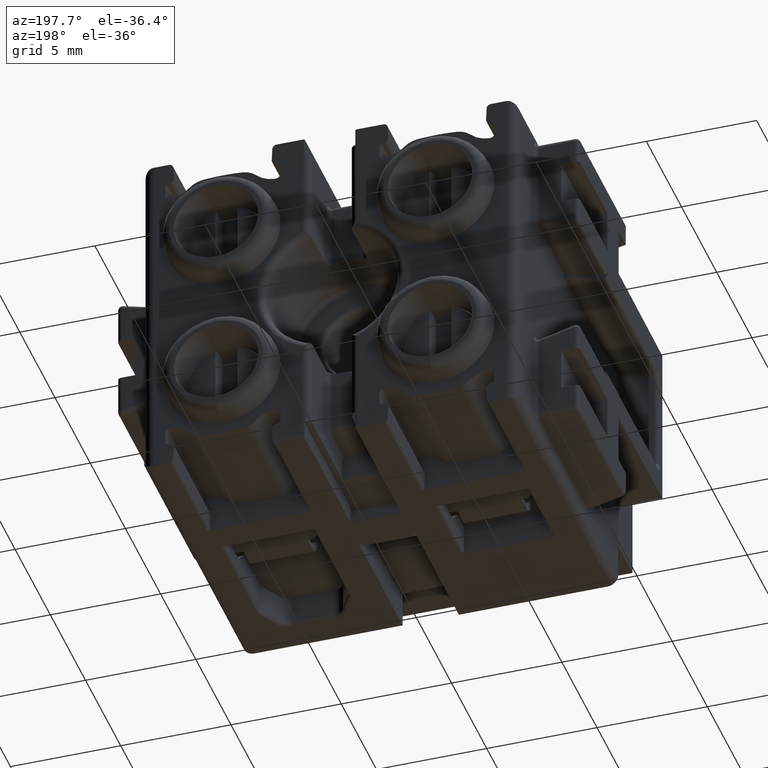
[diagram: clean part render]
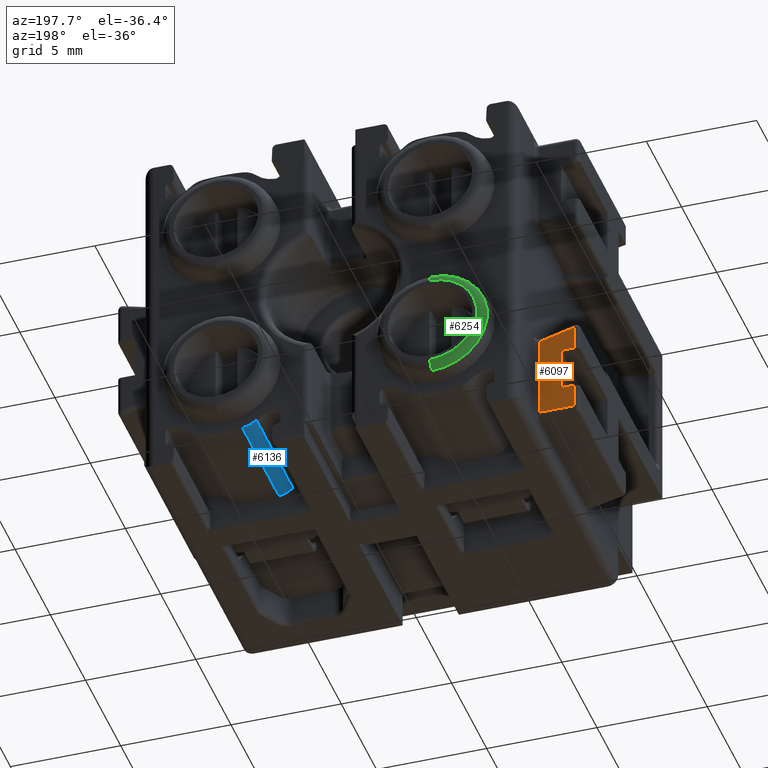
[diagram: same view with three faces highlighted in distinct colors, each labeled with its STEP entity id]
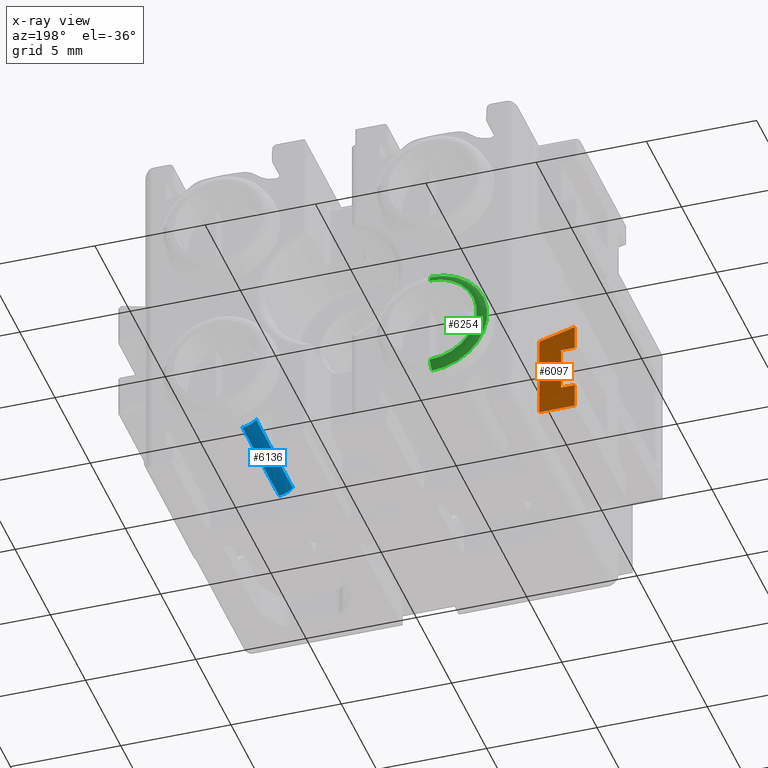
[diagram: x-ray of the same camera — body ghosted, the three highlighted faces saturated]
A machine part, auxiliary view with three faces highlighted in distinct colors.
The next image is the same camera in x-ray (body ghosted, the three faces saturated) — at least one of them is partly hidden behind the body in this view.
Their STEP definitions:

[orange] entity #6097 — the highlighted planar face has unit normal (0, 1, 0).
#1010 = AXIS2_PLACEMENT_3D ( 'NONE', #7095, #7106, #7109 ) ;
#4837 = VECTOR ( 'NONE', #14046, 1000.000000000000000 ) ;
#4877 = VECTOR ( 'NONE', #14012, 1000.000000000000000 ) ;
#4900 = VECTOR ( 'NONE', #14037, 1000.000000000000000 ) ;
#4916 = VECTOR ( 'NONE', #14061, 1000.000000000000000 ) ;
#4938 = VECTOR ( 'NONE', #14118, 1000.000000000000000 ) ;
#4941 = VECTOR ( 'NONE', #14176, 1000.000000000000200 ) ;
#4944 = VECTOR ( 'NONE', #14173, 1000.000000000000000 ) ;
#4950 = VECTOR ( 'NONE', #14159, 1000.000000000000000 ) ;
#6097 = ADVANCED_FACE ( 'NONE', ( #7101 ), #7057, .T. ) ;
#7057 = PLANE ( 'NONE',  #1010 ) ;
#7095 = CARTESIAN_POINT ( 'NONE',  ( 11.15655536988764000, 40.84963753280960200, -16.17283801961439900 ) ) ;
#7101 = FACE_OUTER_BOUND ( 'NONE', #12423, .T. ) ;
#7106 = DIRECTION ( 'NONE',  ( 0.0000000000000000000, 1.000000000000000000, 2.793185071074504800E-014 ) ) ;
#7109 = DIRECTION ( 'NONE',  ( 0.0000000000000000000, -2.793185071074504800E-014, 1.000000000000000000 ) ) ;
#12423 = EDGE_LOOP ( 'NONE', ( #20323, #20326, #20224, #20251, #20241, #20234, #20212, #20213 ) ) ;
#14003 = LINE ( 'NONE', #14007, #4877 ) ;
#14007 = CARTESIAN_POINT ( 'NONE',  ( 9.356555369887638900, 40.84963753280960200, -16.17283801961439900 ) ) ;
#14012 = DIRECTION ( 'NONE',  ( 0.0000000000000000000, -2.793185071074504800E-014, 1.000000000000000000 ) ) ;
#14017 = CARTESIAN_POINT ( 'NONE',  ( 9.976555369887639900, 40.84963753280960200, -16.17283801961429600 ) ) ;
#14031 = LINE ( 'NONE', #14044, #4900 ) ;
#14037 = DIRECTION ( 'NONE',  ( 0.0000000000000000000, -2.793185071074504800E-014, 1.000000000000000000 ) ) ;
#14044 = CARTESIAN_POINT ( 'NONE',  ( 9.356555369887638900, 40.84963753280960200, -16.17283801961439900 ) ) ;
#14046 = DIRECTION ( 'NONE',  ( -1.000000000000000000, 0.0000000000000000000, 0.0000000000000000000 ) ) ;
#14054 = LINE ( 'NONE', #14017, #4837 ) ;
#14061 = DIRECTION ( 'NONE',  ( 0.0000000000000000000, 2.793185071074504800E-014, -1.000000000000000000 ) ) ;
#14078 = CARTESIAN_POINT ( 'NONE',  ( 10.95655536988763900, 40.84963753280960200, -16.17283801961439900 ) ) ;
#14100 = LINE ( 'NONE', #14078, #4916 ) ;
#14113 = LINE ( 'NONE', #14147, #4938 ) ;
#14118 = DIRECTION ( 'NONE',  ( 0.0000000000000000000, 2.775557561562895100E-014, -1.000000000000000000 ) ) ;
#14147 = CARTESIAN_POINT ( 'NONE',  ( 9.976555369887639900, 40.84963753280960200, -16.17283801961429600 ) ) ;
#14159 = DIRECTION ( 'NONE',  ( 1.000000000000000000, 0.0000000000000000000, -9.020198266092169300E-016 ) ) ;
#14164 = LINE ( 'NONE', #14167, #4950 ) ;
#14167 = CARTESIAN_POINT ( 'NONE',  ( 9.976555369887639900, 40.84963753280954500, -14.17283801961432000 ) ) ;
#14173 = DIRECTION ( 'NONE',  ( -1.000000000000000000, 0.0000000000000000000, 0.0000000000000000000 ) ) ;
#14176 = DIRECTION ( 'NONE',  ( 0.9659258262890680900, 7.229294928901230600E-015, -0.2588190451025215200 ) ) ;
#14184 = CARTESIAN_POINT ( 'NONE',  ( 10.94743918022932000, 40.84963753280954500, -13.48652293543598000 ) ) ;
#14185 = LINE ( 'NONE', #14184, #4941 ) ;
#14192 = LINE ( 'NONE', #14194, #4944 ) ;
#14194 = CARTESIAN_POINT ( 'NONE',  ( 11.15655536988764000, 40.84963753280965200, -17.27283801961419800 ) ) ;
#14396 = VERTEX_POINT ( 'NONE', #17481 ) ;
#14425 = VERTEX_POINT ( 'NONE', #17478 ) ;
#14454 = VERTEX_POINT ( 'NONE', #17590 ) ;
#14464 = VERTEX_POINT ( 'NONE', #17548 ) ;
#14465 = VERTEX_POINT ( 'NONE', #17545 ) ;
#14470 = VERTEX_POINT ( 'NONE', #17574 ) ;
#14487 = VERTEX_POINT ( 'NONE', #17571 ) ;
#14503 = VERTEX_POINT ( 'NONE', #17617 ) ;
#17478 = CARTESIAN_POINT ( 'NONE',  ( 10.95655536988763900, 40.84963753280954500, -13.48896561109296100 ) ) ;
#17481 = CARTESIAN_POINT ( 'NONE',  ( 9.356555369887638900, 40.84963753280960200, -16.17283801961429600 ) ) ;
#17545 = CARTESIAN_POINT ( 'NONE',  ( 9.356555369887638900, 40.84963753280965200, -17.27283801961419800 ) ) ;
#17548 = CARTESIAN_POINT ( 'NONE',  ( 9.356555369887638900, 40.84963753280954500, -14.17283801961432000 ) ) ;
#17571 = CARTESIAN_POINT ( 'NONE',  ( 9.976555369887639900, 40.84963753280960200, -16.17283801961429600 ) ) ;
#17574 = CARTESIAN_POINT ( 'NONE',  ( 10.95655536988763900, 40.84963753280965200, -17.27283801961419800 ) ) ;
#17590 = CARTESIAN_POINT ( 'NONE',  ( 9.976555369887639900, 40.84963753280954500, -14.17283801961432000 ) ) ;
#17617 = CARTESIAN_POINT ( 'NONE',  ( 9.356555369887638900, 40.84963753280949600, -13.06024690320316000 ) ) ;
#20052 = EDGE_CURVE ( 'NONE', #14465, #14396, #14003, .T. ) ;
#20061 = EDGE_CURVE ( 'NONE', #14487, #14396, #14054, .T. ) ;
#20070 = EDGE_CURVE ( 'NONE', #14464, #14503, #14031, .T. ) ;
#20082 = EDGE_CURVE ( 'NONE', #14425, #14470, #14100, .T. ) ;
#20087 = EDGE_CURVE ( 'NONE', #14454, #14487, #14113, .T. ) ;
#20102 = EDGE_CURVE ( 'NONE', #14503, #14425, #14185, .T. ) ;
#20110 = EDGE_CURVE ( 'NONE', #14470, #14465, #14192, .T. ) ;
#20114 = EDGE_CURVE ( 'NONE', #14464, #14454, #14164, .T. ) ;
#20212 = ORIENTED_EDGE ( 'NONE', *, *, #20114, .F. ) ;
#20213 = ORIENTED_EDGE ( 'NONE', *, *, #20070, .T. ) ;
#20224 = ORIENTED_EDGE ( 'NONE', *, *, #20110, .T. ) ;
#20234 = ORIENTED_EDGE ( 'NONE', *, *, #20087, .F. ) ;
#20241 = ORIENTED_EDGE ( 'NONE', *, *, #20061, .F. ) ;
#20251 = ORIENTED_EDGE ( 'NONE', *, *, #20052, .T. ) ;
#20323 = ORIENTED_EDGE ( 'NONE', *, *, #20102, .T. ) ;
#20326 = ORIENTED_EDGE ( 'NONE', *, *, #20082, .T. ) ;

[blue] entity #6136 — the highlighted cylindrical surface (edge-blend (fillet) strip) has radius 1 mm, axis along (0, 1, 0).
#39 = AXIS2_PLACEMENT_3D ( 'NONE', #7311, #7285, #7288 ) ;
#261 = CIRCLE ( 'NONE', #262, 1.000000000000268000 ) ;
#262 = AXIS2_PLACEMENT_3D ( 'NONE', #8573, #8593, #8595 ) ;
#285 = VECTOR ( 'NONE', #8547, 1000.000000000000000 ) ;
#344 = VECTOR ( 'NONE', #8684, 1000.000000000000000 ) ;
#632 = AXIS2_PLACEMENT_3D ( 'NONE', #3379, #3404, #3381 ) ;
#653 = CIRCLE ( 'NONE', #632, 1.000000000000268000 ) ;
#1252 = EDGE_CURVE ( 'NONE', #14576, #14625, #653, .T. ) ;
#3379 = CARTESIAN_POINT ( 'NONE',  ( 23.71028009466210300, 43.34889991280960000, -16.02981144497174900 ) ) ;
#3381 = DIRECTION ( 'NONE',  ( 0.0000000000000000000, -2.775557561562147600E-014, 1.000000000000000000 ) ) ;
#3404 = DIRECTION ( 'NONE',  ( 0.0000000000000000000, -1.000000000000000000, -2.793185071074504800E-014 ) ) ;
#6136 = ADVANCED_FACE ( 'NONE', ( #7307 ), #7308, .T. ) ;
#6381 = EDGE_CURVE ( 'NONE', #14647, #14625, #8541, .T. ) ;
#6389 = EDGE_CURVE ( 'NONE', #14672, #14647, #261, .T. ) ;
#6426 = EDGE_CURVE ( 'NONE', #14672, #14576, #8691, .T. ) ;
#7285 = DIRECTION ( 'NONE',  ( 0.0000000000000000000, 1.000000000000000000, 2.793185071074504800E-014 ) ) ;
#7288 = DIRECTION ( 'NONE',  ( 0.0000000000000000000, -2.775557561562147600E-014, 1.000000000000000000 ) ) ;
#7307 = FACE_OUTER_BOUND ( 'NONE', #12495, .T. ) ;
#7308 = CYLINDRICAL_SURFACE ( 'NONE', #39, 1.000000000000268000 ) ;
#7311 = CARTESIAN_POINT ( 'NONE',  ( 23.71028009466210300, 38.14889991280959700, -16.02981144497190200 ) ) ;
#8541 = LINE ( 'NONE', #8569, #285 ) ;
#8547 = DIRECTION ( 'NONE',  ( 0.0000000000000000000, 1.000000000000000000, 2.793185071074504800E-014 ) ) ;
#8569 = CARTESIAN_POINT ( 'NONE',  ( 23.62082231334310100, 38.14889991280964700, -17.02580206006929900 ) ) ;
#8573 = CARTESIAN_POINT ( 'NONE',  ( 23.71028009466210300, 38.14889991280959700, -16.02981144497190200 ) ) ;
#8593 = DIRECTION ( 'NONE',  ( 0.0000000000000000000, -1.000000000000000000, -2.793185071074504800E-014 ) ) ;
#8595 = DIRECTION ( 'NONE',  ( 0.0000000000000000000, -2.775557561562147600E-014, 1.000000000000000000 ) ) ;
#8674 = CARTESIAN_POINT ( 'NONE',  ( 23.00203832925879900, 38.14889991280959700, -16.73578141723630000 ) ) ;
#8684 = DIRECTION ( 'NONE',  ( 0.0000000000000000000, 1.000000000000000000, 2.793185071074504800E-014 ) ) ;
#8691 = LINE ( 'NONE', #8674, #344 ) ;
#10308 = ORIENTED_EDGE ( 'NONE', *, *, #6389, .F. ) ;
#10309 = ORIENTED_EDGE ( 'NONE', *, *, #6426, .T. ) ;
#10316 = ORIENTED_EDGE ( 'NONE', *, *, #1252, .T. ) ;
#10327 = ORIENTED_EDGE ( 'NONE', *, *, #6381, .F. ) ;
#12495 = EDGE_LOOP ( 'NONE', ( #10316, #10327, #10308, #10309 ) ) ;
#14576 = VERTEX_POINT ( 'NONE', #17725 ) ;
#14625 = VERTEX_POINT ( 'NONE', #17696 ) ;
#14647 = VERTEX_POINT ( 'NONE', #17785 ) ;
#14672 = VERTEX_POINT ( 'NONE', #17760 ) ;
#17696 = CARTESIAN_POINT ( 'NONE',  ( 23.62082231334310100, 43.34889991280964900, -17.02580206006915000 ) ) ;
#17725 = CARTESIAN_POINT ( 'NONE',  ( 23.00203832925879900, 43.34889991280960000, -16.73578141723615100 ) ) ;
#17760 = CARTESIAN_POINT ( 'NONE',  ( 23.00203832925879900, 38.14889991280959700, -16.73578141723630000 ) ) ;
#17785 = CARTESIAN_POINT ( 'NONE',  ( 23.62082231334310100, 38.14889991280964700, -17.02580206006929900 ) ) ;

[green] entity #6254 — the highlighted toroidal blend (fillet) surface has major radius 2.1174 mm and minor (blend) radius 0.4 mm.
#153 = AXIS2_PLACEMENT_3D ( 'NONE', #8100, #8110, #8112 ) ;
#166 = TOROIDAL_SURFACE ( 'NONE', #153, 2.117440270963305300, 0.4000000000000000200 ) ;
#347 = AXIS2_PLACEMENT_3D ( 'NONE', #8623, #8614, #8657 ) ;
#361 = CIRCLE ( 'NONE', #347, 2.117440270963305300 ) ;
#1637 = VERTEX_POINT ( 'NONE', #16999 ) ;
#1666 = VERTEX_POINT ( 'NONE', #17026 ) ;
#1674 = VERTEX_POINT ( 'NONE', #17054 ) ;
#1678 = VERTEX_POINT ( 'NONE', #17028 ) ;
#2397 = ORIENTED_EDGE ( 'NONE', *, *, #6407, .F. ) ;
#2404 = ORIENTED_EDGE ( 'NONE', *, *, #9504, .F. ) ;
#2478 = ORIENTED_EDGE ( 'NONE', *, *, #9641, .F. ) ;
#2483 = ORIENTED_EDGE ( 'NONE', *, *, #9610, .T. ) ;
#6254 = ADVANCED_FACE ( 'NONE', ( #8108 ), #166, .T. ) ;
#6407 = EDGE_CURVE ( 'NONE', #1678, #1637, #361, .T. ) ;
#8100 = CARTESIAN_POINT ( 'NONE',  ( 14.80655536988763800, 43.94889991280955100, -13.92283801961430200 ) ) ;
#8108 = FACE_OUTER_BOUND ( 'NONE', #12974, .T. ) ;
#8110 = DIRECTION ( 'NONE',  ( 0.0000000000000000000, 1.000000000000000000, 2.793185071074504800E-014 ) ) ;
#8112 = DIRECTION ( 'NONE',  ( 0.0000000000000000000, -2.793185071074504800E-014, 1.000000000000000000 ) ) ;
#8614 = DIRECTION ( 'NONE',  ( 0.0000000000000000000, 1.000000000000000000, 2.793185071074504800E-014 ) ) ;
#8623 = CARTESIAN_POINT ( 'NONE',  ( 14.80655536988763800, 44.34889991280955700, -13.92283801961430200 ) ) ;
#8657 = DIRECTION ( 'NONE',  ( 0.0000000000000000000, -2.949317909532065500E-014, 1.000000000000000000 ) ) ;
#9504 = EDGE_CURVE ( 'NONE', #1674, #1666, #11689, .T. ) ;
#9610 = EDGE_CURVE ( 'NONE', #1674, #1637, #12197, .T. ) ;
#9641 = EDGE_CURVE ( 'NONE', #1666, #1678, #12311, .T. ) ;
#11398 = DIRECTION ( 'NONE',  ( 0.0000000000000000000, -1.000000000000000000, -2.793185071074504800E-014 ) ) ;
#11408 = DIRECTION ( 'NONE',  ( 0.0000000000000000000, 2.769916088034427900E-014, -1.000000000000000000 ) ) ;
#11486 = CARTESIAN_POINT ( 'NONE',  ( 14.80655536988763800, 44.04752212630474900, -13.92283801961430200 ) ) ;
#11665 = AXIS2_PLACEMENT_3D ( 'NONE', #11486, #11398, #11408 ) ;
#11689 = CIRCLE ( 'NONE', #11665, 2.505091736851554600 ) ;
#12112 = AXIS2_PLACEMENT_3D ( 'NONE', #12527, #12574, #12579 ) ;
#12197 = CIRCLE ( 'NONE', #12112, 0.3999999999999993000 ) ;
#12295 = AXIS2_PLACEMENT_3D ( 'NONE', #12965, #12909, #12970 ) ;
#12311 = CIRCLE ( 'NONE', #12295, 0.4000000000000010200 ) ;
#12527 = CARTESIAN_POINT ( 'NONE',  ( 14.80655536988763800, 43.94889991280948700, -11.80539774865099600 ) ) ;
#12574 = DIRECTION ( 'NONE',  ( -1.000000000000000000, 0.0000000000000000000, 0.0000000000000000000 ) ) ;
#12579 = DIRECTION ( 'NONE',  ( 0.0000000000000000000, 0.0000000000000000000, 1.000000000000000000 ) ) ;
#12909 = DIRECTION ( 'NONE',  ( 1.000000000000000000, -3.420665156717564800E-030, 1.224646799147353200E-016 ) ) ;
#12965 = CARTESIAN_POINT ( 'NONE',  ( 14.80655536988763800, 43.94889991280961500, -16.04027829057760400 ) ) ;
#12970 = DIRECTION ( 'NONE',  ( 0.0000000000000000000, 0.0000000000000000000, -1.000000000000000000 ) ) ;
#12974 = EDGE_LOOP ( 'NONE', ( #2478, #2404, #2483, #2397 ) ) ;
#16999 = CARTESIAN_POINT ( 'NONE',  ( 14.80655536988763800, 44.34889991280949300, -11.80539774865099600 ) ) ;
#17026 = CARTESIAN_POINT ( 'NONE',  ( 14.80655536988763800, 44.04752212630482000, -16.42792975646585800 ) ) ;
#17028 = CARTESIAN_POINT ( 'NONE',  ( 14.80655536988763800, 44.34889991280961400, -16.04027829057760400 ) ) ;
#17054 = CARTESIAN_POINT ( 'NONE',  ( 14.80655536988763800, 44.04752212630467800, -11.41774628276274600 ) ) ;